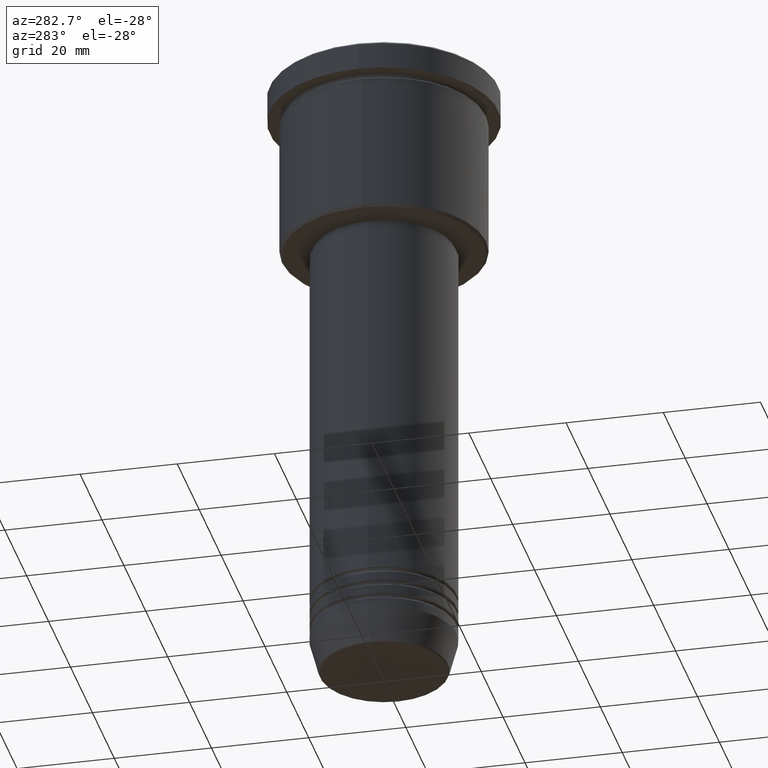
[diagram: clean part render]
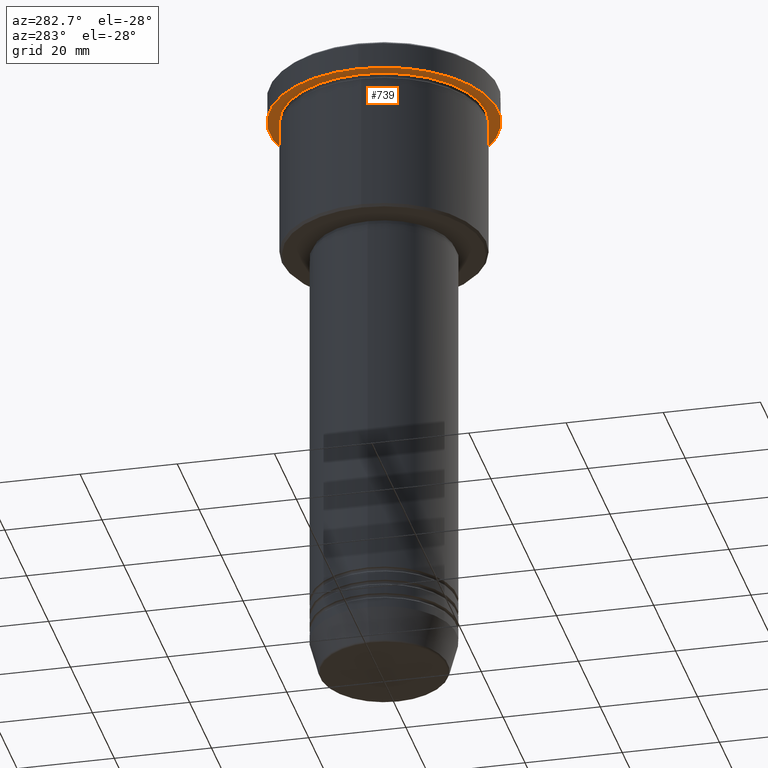
[diagram: same view with one face highlighted and labeled with its STEP entity id]
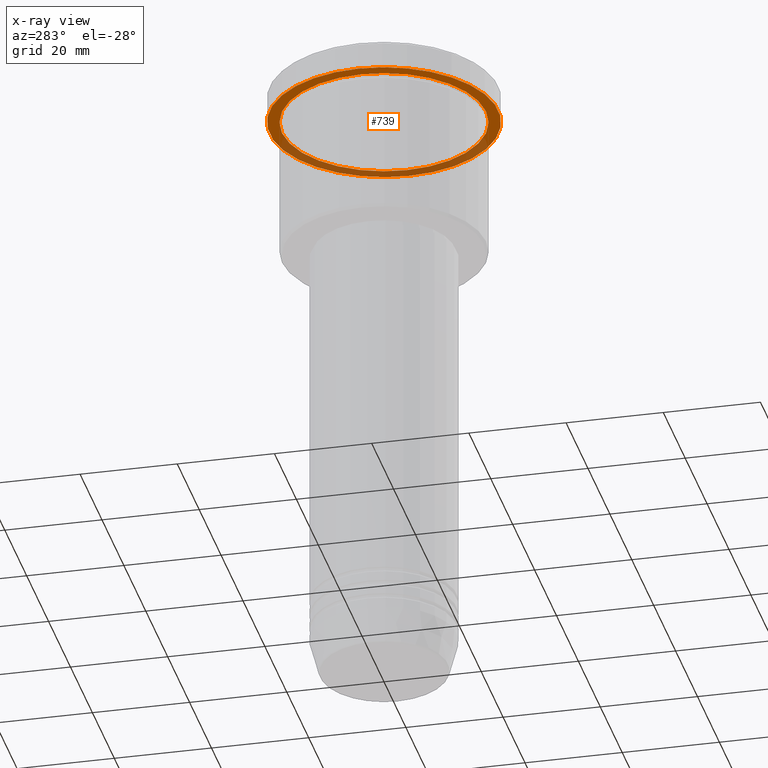
[diagram: x-ray of the same camera — body ghosted, the highlighted face saturated]
A machine part, auxiliary view. The second image highlights one B-rep face of the part: STEP entity #739.
The next image is the same camera in x-ray: the body ghosted, the highlighted face saturated — about 38% of this face is hidden behind the body in this view.
In plain terms, the highlighted planar face has unit normal (0, 0, -1).
Its self-contained STEP definition (entity closure, byte-faithful):
#22 = CARTESIAN_POINT ( 'NONE',  ( -21.00000000000000000, 0.000000000000000000, -5.999999999999994671 ) ) ;
#53 = CIRCLE ( 'NONE', #736, 23.50000000000000000 ) ;
#119 = DIRECTION ( 'NONE',  ( -1.000000000000000000, 0.000000000000000000, 0.000000000000000000 ) ) ;
#136 = CIRCLE ( 'NONE', #811, 21.00000000000000000 ) ;
#148 = FACE_OUTER_BOUND ( 'NONE', #683, .T. ) ;
#149 = ORIENTED_EDGE ( 'NONE', *, *, #352, .F. ) ;
#159 = CARTESIAN_POINT ( 'NONE',  ( 0.000000000000000000, 0.000000000000000000, -5.999999999999994671 ) ) ;
#174 = ORIENTED_EDGE ( 'NONE', *, *, #280, .F. ) ;
#178 = DIRECTION ( 'NONE',  ( -1.000000000000000000, 0.000000000000000000, 0.000000000000000000 ) ) ;
#205 = CARTESIAN_POINT ( 'NONE',  ( 0.000000000000000000, 0.000000000000000000, -5.999999999999994671 ) ) ;
#280 = EDGE_CURVE ( 'NONE', #344, #894, #53, .T. ) ;
#289 = CARTESIAN_POINT ( 'NONE',  ( 23.50000000000000000, 0.000000000000000000, -5.999999999999994671 ) ) ;
#295 = DIRECTION ( 'NONE',  ( -1.000000000000000000, 0.000000000000000000, -0.000000000000000000 ) ) ;
#298 = CARTESIAN_POINT ( 'NONE',  ( -23.50000000000000000, 2.877919977996280320E-15, -5.999999999999994671 ) ) ;
#315 = EDGE_LOOP ( 'NONE', ( #1095, #764 ) ) ;
#327 = DIRECTION ( 'NONE',  ( -0.000000000000000000, -0.000000000000000000, 1.000000000000000000 ) ) ;
#344 = VERTEX_POINT ( 'NONE', #289 ) ;
#352 = EDGE_CURVE ( 'NONE', #894, #344, #412, .T. ) ;
#394 = DIRECTION ( 'NONE',  ( -0.000000000000000000, -0.000000000000000000, 1.000000000000000000 ) ) ;
#398 = DIRECTION ( 'NONE',  ( -0.000000000000000000, -0.000000000000000000, 1.000000000000000000 ) ) ;
#411 = EDGE_CURVE ( 'NONE', #568, #1146, #468, .T. ) ;
#412 = CIRCLE ( 'NONE', #671, 23.50000000000000000 ) ;
#468 = CIRCLE ( 'NONE', #1140, 21.00000000000000000 ) ;
#492 = EDGE_CURVE ( 'NONE', #1146, #568, #136, .T. ) ;
#531 = DIRECTION ( 'NONE',  ( 1.000000000000000000, 0.000000000000000000, 0.000000000000000000 ) ) ;
#568 = VERTEX_POINT ( 'NONE', #22 ) ;
#572 = DIRECTION ( 'NONE',  ( 1.000000000000000000, 0.000000000000000000, 0.000000000000000000 ) ) ;
#616 = PLANE ( 'NONE',  #777 ) ;
#644 = DIRECTION ( 'NONE',  ( 0.000000000000000000, 0.000000000000000000, -1.000000000000000000 ) ) ;
#671 = AXIS2_PLACEMENT_3D ( 'NONE', #205, #994, #572 ) ;
#683 = EDGE_LOOP ( 'NONE', ( #174, #149 ) ) ;
#736 = AXIS2_PLACEMENT_3D ( 'NONE', #159, #327, #531 ) ;
#739 = ADVANCED_FACE ( 'NONE', ( #965, #148 ), #616, .T. ) ;
#764 = ORIENTED_EDGE ( 'NONE', *, *, #492, .T. ) ;
#777 = AXIS2_PLACEMENT_3D ( 'NONE', #831, #644, #295 ) ;
#811 = AXIS2_PLACEMENT_3D ( 'NONE', #959, #398, #119 ) ;
#831 = CARTESIAN_POINT ( 'NONE',  ( 0.000000000000000000, 23.50000000000000000, -5.999999999999994671 ) ) ;
#840 = CARTESIAN_POINT ( 'NONE',  ( 0.000000000000000000, 0.000000000000000000, -5.999999999999994671 ) ) ;
#877 = CARTESIAN_POINT ( 'NONE',  ( 21.00000000000000000, 2.571758278209441661E-15, -5.999999999999994671 ) ) ;
#894 = VERTEX_POINT ( 'NONE', #298 ) ;
#959 = CARTESIAN_POINT ( 'NONE',  ( 0.000000000000000000, 0.000000000000000000, -5.999999999999994671 ) ) ;
#965 = FACE_BOUND ( 'NONE', #315, .T. ) ;
#994 = DIRECTION ( 'NONE',  ( -0.000000000000000000, -0.000000000000000000, 1.000000000000000000 ) ) ;
#1095 = ORIENTED_EDGE ( 'NONE', *, *, #411, .T. ) ;
#1140 = AXIS2_PLACEMENT_3D ( 'NONE', #840, #394, #178 ) ;
#1146 = VERTEX_POINT ( 'NONE', #877 ) ;